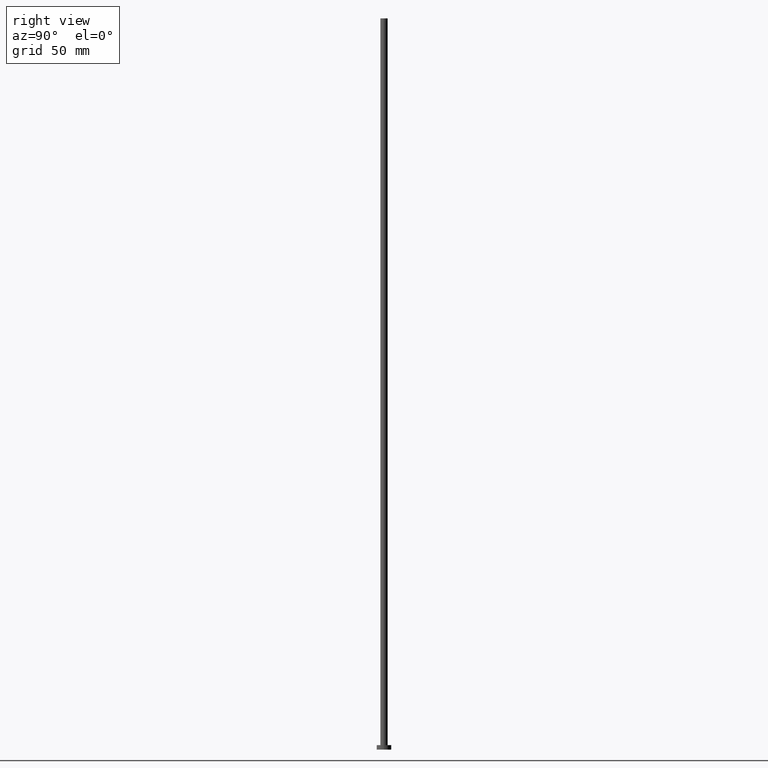
[diagram: clean part render]
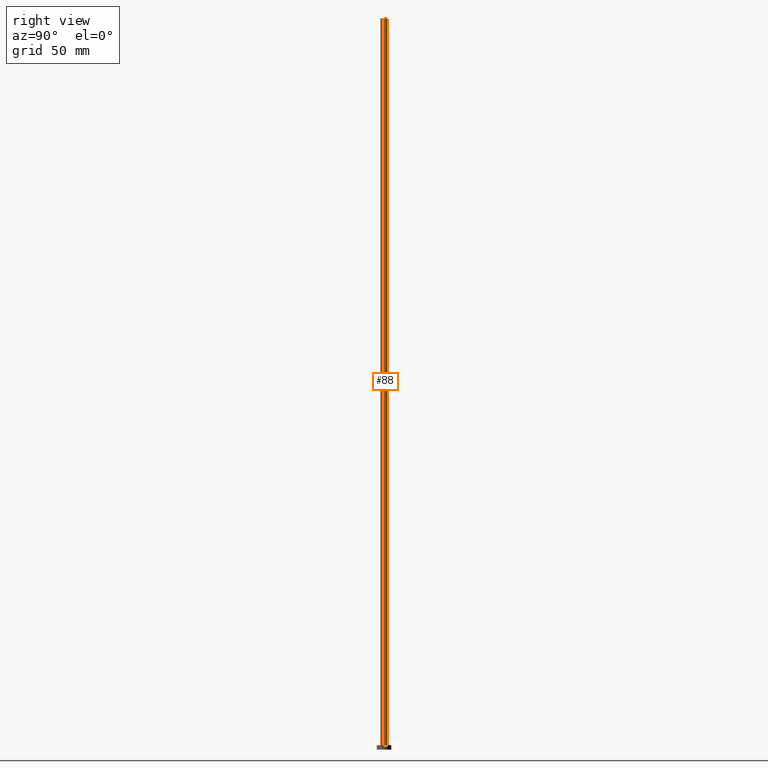
[diagram: same view with one face highlighted and labeled with its STEP entity id]
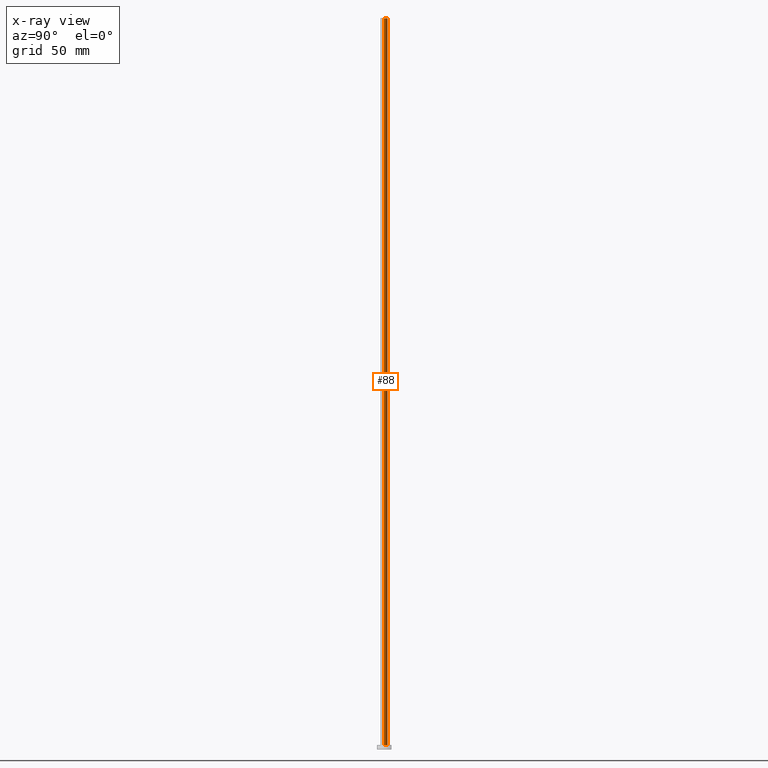
[diagram: x-ray of the same camera — body ghosted, the highlighted face saturated]
A machine part, right view. The second image highlights one B-rep face of the part: STEP entity #88.
The next image is the same camera in x-ray: the body ghosted, the highlighted face saturated — about 0% of this face is hidden behind the body in this view.
In plain terms, the highlighted cylindrical surface (edge-blend (fillet) strip) has radius 2.5 mm, axis along (-0, -0, -1).
Its self-contained STEP definition (entity closure, byte-faithful):
#1 = AXIS2_PLACEMENT_3D ( 'NONE', #193, #144, #31 ) ;
#16 = DIRECTION ( 'NONE',  ( -0.000000000000000000, -0.000000000000000000, -1.000000000000000000 ) ) ;
#20 = AXIS2_PLACEMENT_3D ( 'NONE', #187, #231, #109 ) ;
#31 = DIRECTION ( 'NONE',  ( 1.000000000000000000, 0.000000000000000000, 0.000000000000000000 ) ) ;
#36 = DIRECTION ( 'NONE',  ( -0.000000000000000000, -0.000000000000000000, -1.000000000000000000 ) ) ;
#48 = CARTESIAN_POINT ( 'NONE',  ( 2.500000000000000000, 3.061616997868382648E-16, 500.0000000000000000 ) ) ;
#50 = LINE ( 'NONE', #106, #221 ) ;
#70 = FACE_OUTER_BOUND ( 'NONE', #142, .T. ) ;
#72 = EDGE_CURVE ( 'NONE', #153, #244, #50, .T. ) ;
#88 = ADVANCED_FACE ( 'NONE', ( #70 ), #249, .T. ) ;
#90 = ORIENTED_EDGE ( 'NONE', *, *, #152, .F. ) ;
#102 = CARTESIAN_POINT ( 'NONE',  ( 0.000000000000000000, 0.000000000000000000, 500.0000000000000000 ) ) ;
#106 = CARTESIAN_POINT ( 'NONE',  ( -2.500000000000000000, 0.000000000000000000, 500.0000000000000000 ) ) ;
#109 = DIRECTION ( 'NONE',  ( 1.000000000000000000, 0.000000000000000000, 0.000000000000000000 ) ) ;
#123 = CARTESIAN_POINT ( 'NONE',  ( -2.500000000000000000, 0.000000000000000000, 500.0000000000000000 ) ) ;
#139 = VERTEX_POINT ( 'NONE', #251 ) ;
#142 = EDGE_LOOP ( 'NONE', ( #90, #224, #156, #246 ) ) ;
#143 = VECTOR ( 'NONE', #16, 1000.000000000000000 ) ;
#144 = DIRECTION ( 'NONE',  ( 0.000000000000000000, 0.000000000000000000, 1.000000000000000000 ) ) ;
#152 = EDGE_CURVE ( 'NONE', #222, #153, #243, .T. ) ;
#153 = VERTEX_POINT ( 'NONE', #123 ) ;
#156 = ORIENTED_EDGE ( 'NONE', *, *, #236, .T. ) ;
#167 = CARTESIAN_POINT ( 'NONE',  ( -2.500000000000000000, 0.000000000000000000, 3.000000000000000000 ) ) ;
#169 = LINE ( 'NONE', #48, #143 ) ;
#185 = DIRECTION ( 'NONE',  ( -1.000000000000000000, 0.000000000000000000, 0.000000000000000000 ) ) ;
#187 = CARTESIAN_POINT ( 'NONE',  ( 0.000000000000000000, 0.000000000000000000, 500.0000000000000000 ) ) ;
#188 = CARTESIAN_POINT ( 'NONE',  ( 2.500000000000000000, 3.061616997868382648E-16, 500.0000000000000000 ) ) ;
#193 = CARTESIAN_POINT ( 'NONE',  ( 0.000000000000000000, 0.000000000000000000, 3.000000000000000000 ) ) ;
#203 = AXIS2_PLACEMENT_3D ( 'NONE', #102, #216, #185 ) ;
#216 = DIRECTION ( 'NONE',  ( -0.000000000000000000, -0.000000000000000000, -1.000000000000000000 ) ) ;
#221 = VECTOR ( 'NONE', #36, 1000.000000000000000 ) ;
#222 = VERTEX_POINT ( 'NONE', #188 ) ;
#224 = ORIENTED_EDGE ( 'NONE', *, *, #238, .T. ) ;
#231 = DIRECTION ( 'NONE',  ( 0.000000000000000000, 0.000000000000000000, 1.000000000000000000 ) ) ;
#235 = CIRCLE ( 'NONE', #1, 2.500000000000000000 ) ;
#236 = EDGE_CURVE ( 'NONE', #139, #244, #235, .T. ) ;
#238 = EDGE_CURVE ( 'NONE', #222, #139, #169, .T. ) ;
#243 = CIRCLE ( 'NONE', #20, 2.500000000000000000 ) ;
#244 = VERTEX_POINT ( 'NONE', #167 ) ;
#246 = ORIENTED_EDGE ( 'NONE', *, *, #72, .F. ) ;
#249 = CYLINDRICAL_SURFACE ( 'NONE', #203, 2.500000000000000000 ) ;
#251 = CARTESIAN_POINT ( 'NONE',  ( 2.500000000000000000, 3.061616997868382648E-16, 3.000000000000000000 ) ) ;